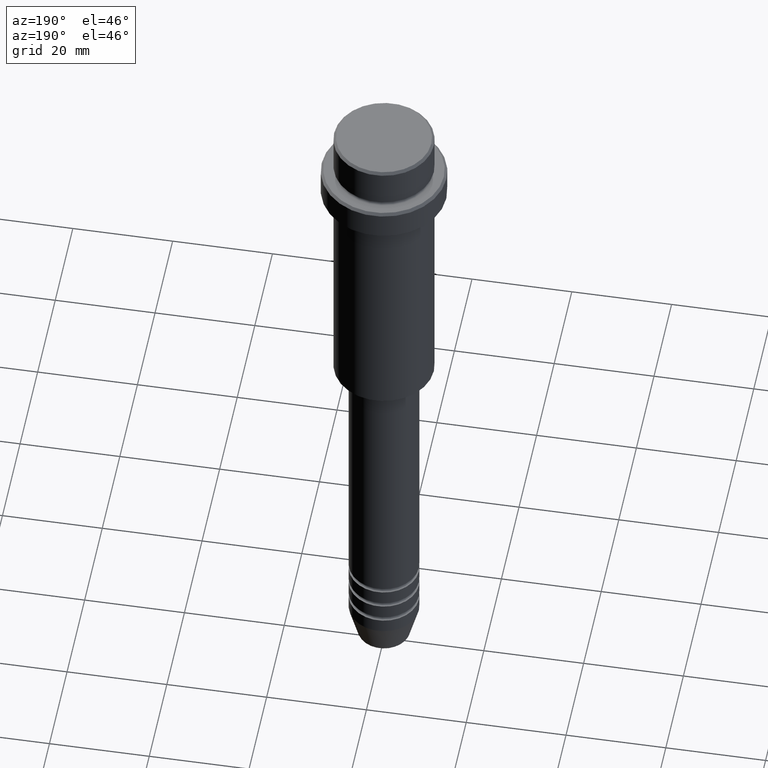
[diagram: clean part render]
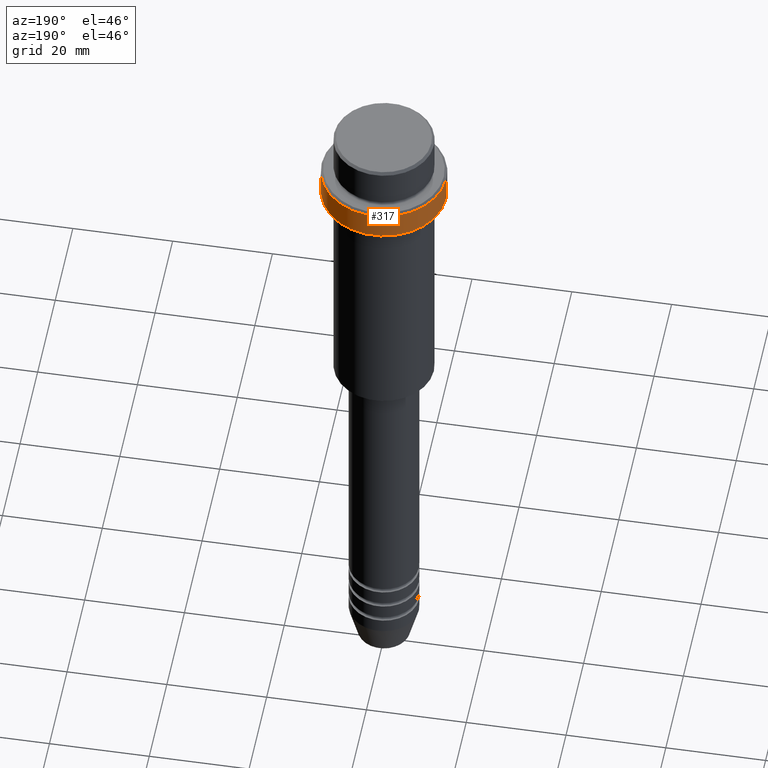
[diagram: same view with one face highlighted and labeled with its STEP entity id]
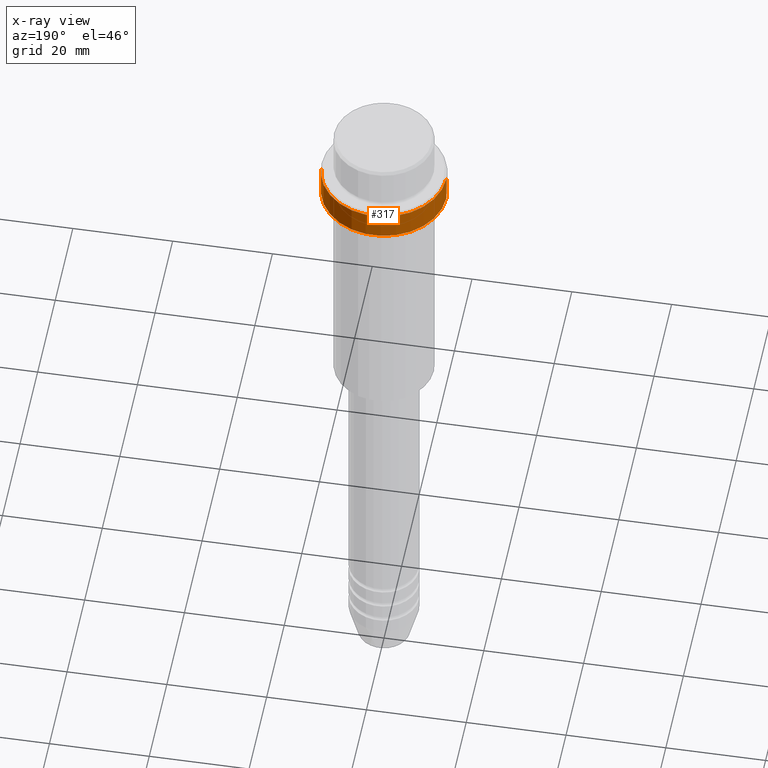
[diagram: x-ray of the same camera — body ghosted, the highlighted face saturated]
A machine part, auxiliary view. The second image highlights one B-rep face of the part: STEP entity #317.
The next image is the same camera in x-ray: the body ghosted, the highlighted face saturated — about 0% of this face is hidden behind the body in this view.
In plain terms, the highlighted cylindrical surface (partial cylindrical patch) has radius 12.5 mm, axis along (-0, -0, 1).
Its self-contained STEP definition (entity closure, byte-faithful):
#24 = CARTESIAN_POINT ( 'NONE',  ( -12.50000000000000000, 1.530808498934191521E-15, -15.00000000000000000 ) ) ;
#49 = VERTEX_POINT ( 'NONE', #1401 ) ;
#70 = VECTOR ( 'NONE', #593, 1000.000000000000000 ) ;
#80 = CARTESIAN_POINT ( 'NONE',  ( 0.000000000000000000, 0.000000000000000000, 0.000000000000000000 ) ) ;
#133 = DIRECTION ( 'NONE',  ( -0.000000000000000000, -0.000000000000000000, 1.000000000000000000 ) ) ;
#188 = LINE ( 'NONE', #402, #1377 ) ;
#212 = AXIS2_PLACEMENT_3D ( 'NONE', #926, #133, #241 ) ;
#241 = DIRECTION ( 'NONE',  ( 1.000000000000000000, 0.000000000000000000, 0.000000000000000000 ) ) ;
#301 = VERTEX_POINT ( 'NONE', #24 ) ;
#317 = ADVANCED_FACE ( 'NONE', ( #733 ), #619, .T. ) ;
#323 = EDGE_CURVE ( 'NONE', #301, #787, #188, .T. ) ;
#327 = AXIS2_PLACEMENT_3D ( 'NONE', #80, #1053, #744 ) ;
#390 = ORIENTED_EDGE ( 'NONE', *, *, #1113, .T. ) ;
#402 = CARTESIAN_POINT ( 'NONE',  ( -12.50000000000000000, 1.530808498934191521E-15, 0.000000000000000000 ) ) ;
#416 = AXIS2_PLACEMENT_3D ( 'NONE', #1117, #700, #1129 ) ;
#480 = CARTESIAN_POINT ( 'NONE',  ( 12.50000000000000000, 0.000000000000000000, 0.000000000000000000 ) ) ;
#512 = DIRECTION ( 'NONE',  ( -0.000000000000000000, -0.000000000000000000, 1.000000000000000000 ) ) ;
#590 = ORIENTED_EDGE ( 'NONE', *, *, #323, .T. ) ;
#593 = DIRECTION ( 'NONE',  ( -0.000000000000000000, -0.000000000000000000, 1.000000000000000000 ) ) ;
#608 = EDGE_CURVE ( 'NONE', #1132, #49, #795, .T. ) ;
#619 = CYLINDRICAL_SURFACE ( 'NONE', #327, 12.50000000000000000 ) ;
#634 = EDGE_LOOP ( 'NONE', ( #390, #590, #1384, #800 ) ) ;
#700 = DIRECTION ( 'NONE',  ( 0.000000000000000000, 0.000000000000000000, -1.000000000000000000 ) ) ;
#733 = FACE_OUTER_BOUND ( 'NONE', #634, .T. ) ;
#741 = CARTESIAN_POINT ( 'NONE',  ( -12.50000000000000000, 1.530808498934191521E-15, -9.500000000000031974 ) ) ;
#744 = DIRECTION ( 'NONE',  ( 1.000000000000000000, 0.000000000000000000, 0.000000000000000000 ) ) ;
#787 = VERTEX_POINT ( 'NONE', #741 ) ;
#795 = LINE ( 'NONE', #480, #70 ) ;
#800 = ORIENTED_EDGE ( 'NONE', *, *, #608, .F. ) ;
#815 = CARTESIAN_POINT ( 'NONE',  ( 12.50000000000000000, 0.000000000000000000, -15.00000000000000000 ) ) ;
#926 = CARTESIAN_POINT ( 'NONE',  ( 0.000000000000000000, 0.000000000000000000, -15.00000000000000000 ) ) ;
#1053 = DIRECTION ( 'NONE',  ( -0.000000000000000000, -0.000000000000000000, 1.000000000000000000 ) ) ;
#1088 = EDGE_CURVE ( 'NONE', #787, #49, #1285, .T. ) ;
#1113 = EDGE_CURVE ( 'NONE', #1132, #301, #1308, .T. ) ;
#1117 = CARTESIAN_POINT ( 'NONE',  ( 0.000000000000000000, 0.000000000000000000, -9.500000000000031974 ) ) ;
#1129 = DIRECTION ( 'NONE',  ( 1.000000000000000000, 0.000000000000000000, 0.000000000000000000 ) ) ;
#1132 = VERTEX_POINT ( 'NONE', #815 ) ;
#1285 = CIRCLE ( 'NONE', #416, 12.50000000000000000 ) ;
#1308 = CIRCLE ( 'NONE', #212, 12.50000000000000000 ) ;
#1377 = VECTOR ( 'NONE', #512, 1000.000000000000000 ) ;
#1384 = ORIENTED_EDGE ( 'NONE', *, *, #1088, .T. ) ;
#1401 = CARTESIAN_POINT ( 'NONE',  ( 12.50000000000000000, 0.000000000000000000, -9.500000000000031974 ) ) ;